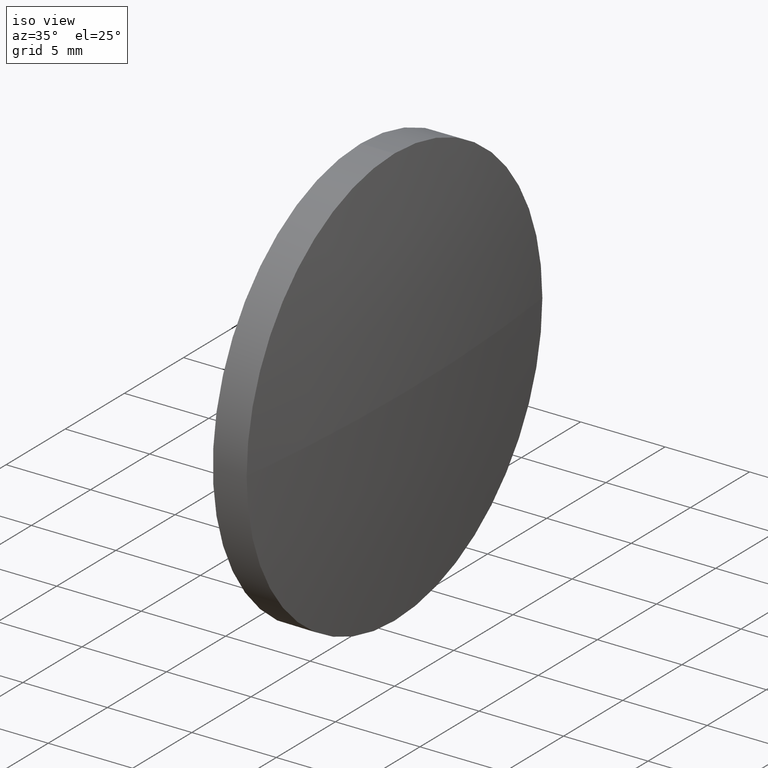
[diagram: clean part render]
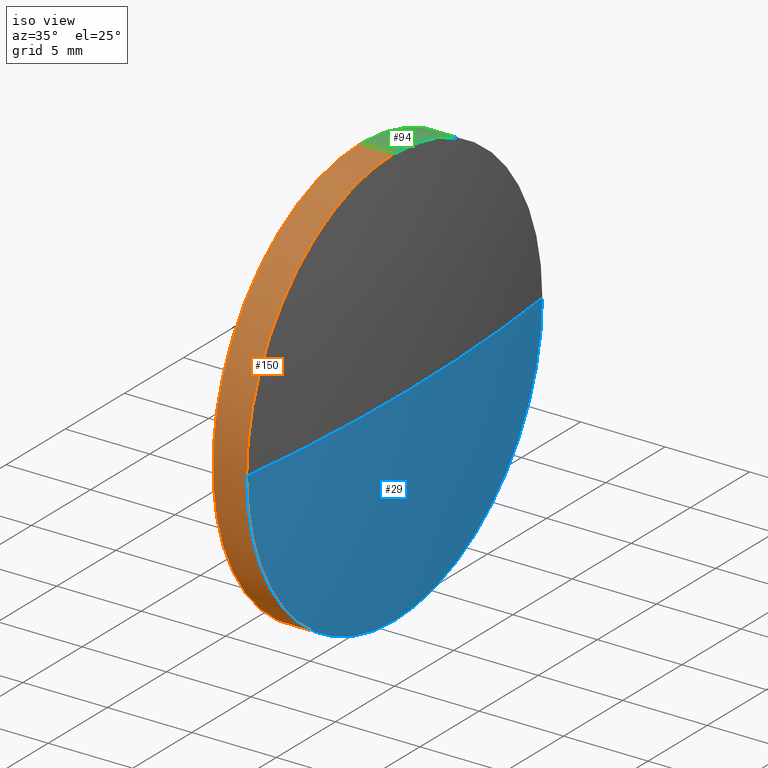
[diagram: same view with three faces highlighted in distinct colors, each labeled with its STEP entity id]
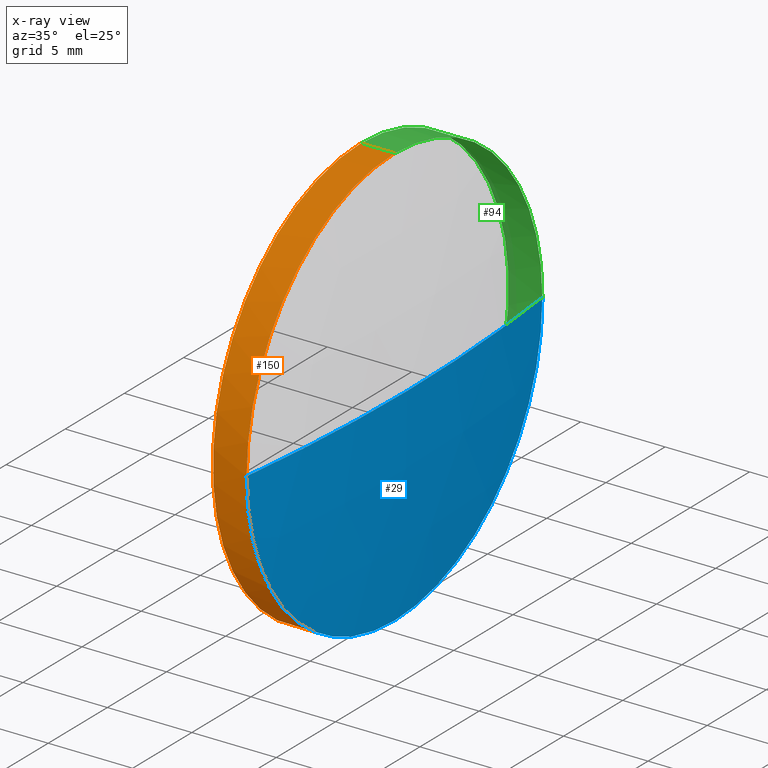
[diagram: x-ray of the same camera — body ghosted, the three highlighted faces saturated]
A machine part, iso view with three faces highlighted in distinct colors.
The next image is the same camera in x-ray (body ghosted, the three faces saturated) — at least one of them is partly hidden behind the body in this view.
Their STEP definitions:

[orange] entity #150 — the highlighted cylindrical surface (partial cylindrical patch) has radius 12.5 mm, axis along (-1, -0, -0).
#1 = CIRCLE ( 'NONE', #144, 12.49999999999999600 ) ;
#10 = EDGE_CURVE ( 'NONE', #66, #52, #1, .T. ) ;
#11 = VERTEX_POINT ( 'NONE', #124 ) ;
#12 = AXIS2_PLACEMENT_3D ( 'NONE', #163, #36, #161 ) ;
#31 = CARTESIAN_POINT ( 'NONE',  ( 407.3228291971680600, 90.20022924379941300, -12.49999999999999600 ) ) ;
#33 = DIRECTION ( 'NONE',  ( 0.0000000000000000000, 0.0000000000000000000, 1.000000000000000000 ) ) ;
#36 = DIRECTION ( 'NONE',  ( -1.000000000000000000, -0.0000000000000000000, -0.0000000000000000000 ) ) ;
#37 = DIRECTION ( 'NONE',  ( 0.0000000000000000000, 0.0000000000000000000, 1.000000000000000000 ) ) ;
#39 = LINE ( 'NONE', #31, #115 ) ;
#49 = CARTESIAN_POINT ( 'NONE',  ( 409.3519367756050500, 90.20022924379941300, 0.0000000000000000000 ) ) ;
#52 = VERTEX_POINT ( 'NONE', #110 ) ;
#59 = DIRECTION ( 'NONE',  ( -1.000000000000000000, -0.0000000000000000000, -0.0000000000000000000 ) ) ;
#63 = ORIENTED_EDGE ( 'NONE', *, *, #138, .F. ) ;
#66 = VERTEX_POINT ( 'NONE', #154 ) ;
#67 = EDGE_CURVE ( 'NONE', #166, #11, #39, .T. ) ;
#72 = CARTESIAN_POINT ( 'NONE',  ( 411.3519367756050500, 90.20022924379941300, 0.0000000000000000000 ) ) ;
#74 = CARTESIAN_POINT ( 'NONE',  ( 407.3228291971680600, 90.20022924379941300, 12.49999999999999600 ) ) ;
#84 = CARTESIAN_POINT ( 'NONE',  ( 411.3519367756050500, 90.20022924379941300, 0.0000000000000000000 ) ) ;
#89 = EDGE_CURVE ( 'NONE', #166, #66, #109, .T. ) ;
#91 = CARTESIAN_POINT ( 'NONE',  ( 409.3519367756050500, 90.20022924379941300, 12.49999999999999600 ) ) ;
#93 = ORIENTED_EDGE ( 'NONE', *, *, #10, .T. ) ;
#97 = AXIS2_PLACEMENT_3D ( 'NONE', #84, #114, #37 ) ;
#99 = DIRECTION ( 'NONE',  ( -1.000000000000000000, -0.0000000000000000000, -0.0000000000000000000 ) ) ;
#100 = ORIENTED_EDGE ( 'NONE', *, *, #67, .F. ) ;
#102 = CARTESIAN_POINT ( 'NONE',  ( 411.3519367756050500, 90.20022924379941300, -12.49999999999999600 ) ) ;
#109 = CIRCLE ( 'NONE', #97, 12.49999999999999600 ) ;
#110 = CARTESIAN_POINT ( 'NONE',  ( 411.3519367756050500, 90.20022924379941300, 12.49999999999999600 ) ) ;
#114 = DIRECTION ( 'NONE',  ( -1.000000000000000000, -0.0000000000000000000, -0.0000000000000000000 ) ) ;
#115 = VECTOR ( 'NONE', #122, 1000.000000000000000 ) ;
#119 = EDGE_LOOP ( 'NONE', ( #100, #151, #93, #147, #63 ) ) ;
#120 = CIRCLE ( 'NONE', #141, 12.49999999999999600 ) ;
#122 = DIRECTION ( 'NONE',  ( -1.000000000000000000, -0.0000000000000000000, -0.0000000000000000000 ) ) ;
#124 = CARTESIAN_POINT ( 'NONE',  ( 409.3519367756050500, 90.20022924379941300, -12.49999999999999600 ) ) ;
#130 = CYLINDRICAL_SURFACE ( 'NONE', #12, 12.49999999999999600 ) ;
#131 = DIRECTION ( 'NONE',  ( -1.000000000000000000, -0.0000000000000000000, -0.0000000000000000000 ) ) ;
#134 = LINE ( 'NONE', #74, #148 ) ;
#138 = EDGE_CURVE ( 'NONE', #11, #176, #120, .T. ) ;
#141 = AXIS2_PLACEMENT_3D ( 'NONE', #49, #131, #177 ) ;
#144 = AXIS2_PLACEMENT_3D ( 'NONE', #72, #99, #33 ) ;
#147 = ORIENTED_EDGE ( 'NONE', *, *, #181, .T. ) ;
#148 = VECTOR ( 'NONE', #59, 1000.000000000000000 ) ;
#150 = ADVANCED_FACE ( 'NONE', ( #167 ), #130, .T. ) ;
#151 = ORIENTED_EDGE ( 'NONE', *, *, #89, .T. ) ;
#154 = CARTESIAN_POINT ( 'NONE',  ( 411.3519367756050500, 77.70022924379932800, -1.530808498934180100E-015 ) ) ;
#161 = DIRECTION ( 'NONE',  ( 0.0000000000000000000, 0.0000000000000000000, 1.000000000000000000 ) ) ;
#163 = CARTESIAN_POINT ( 'NONE',  ( 407.3228291971680600, 90.20022924379941300, 0.0000000000000000000 ) ) ;
#166 = VERTEX_POINT ( 'NONE', #102 ) ;
#167 = FACE_OUTER_BOUND ( 'NONE', #119, .T. ) ;
#176 = VERTEX_POINT ( 'NONE', #91 ) ;
#177 = DIRECTION ( 'NONE',  ( 0.0000000000000000000, 0.0000000000000000000, 1.000000000000000000 ) ) ;
#181 = EDGE_CURVE ( 'NONE', #52, #176, #134, .T. ) ;

[blue] entity #29 — the highlighted spherical surface has radius 103.176 mm.
#8 = ORIENTED_EDGE ( 'NONE', *, *, #57, .T. ) ;
#15 = DIRECTION ( 'NONE',  ( -0.0000000000000000000, 0.0000000000000000000, -1.000000000000000000 ) ) ;
#16 = CARTESIAN_POINT ( 'NONE',  ( 411.3519367756050500, 102.7002292437993300, 0.0000000000000000000 ) ) ;
#17 = CARTESIAN_POINT ( 'NONE',  ( 412.1119367756050500, 90.20022924379924200, 0.0000000000000000000 ) ) ;
#19 = CIRCLE ( 'NONE', #107, 12.49999999999999600 ) ;
#25 = VERTEX_POINT ( 'NONE', #16 ) ;
#29 = ADVANCED_FACE ( 'NONE', ( #153 ), #98, .T. ) ;
#30 = ORIENTED_EDGE ( 'NONE', *, *, #43, .F. ) ;
#37 = DIRECTION ( 'NONE',  ( 0.0000000000000000000, 0.0000000000000000000, 1.000000000000000000 ) ) ;
#41 = CIRCLE ( 'NONE', #116, 103.1760526315793200 ) ;
#42 = DIRECTION ( 'NONE',  ( 0.0000000000000000000, 1.000000000000000000, 1.224646799147353200E-016 ) ) ;
#43 = EDGE_CURVE ( 'NONE', #128, #25, #149, .T. ) ;
#45 = DIRECTION ( 'NONE',  ( 1.000000000000000000, 0.0000000000000000000, 0.0000000000000000000 ) ) ;
#57 = EDGE_CURVE ( 'NONE', #128, #66, #41, .T. ) ;
#62 = DIRECTION ( 'NONE',  ( -1.000000000000000000, -0.0000000000000000000, -0.0000000000000000000 ) ) ;
#66 = VERTEX_POINT ( 'NONE', #154 ) ;
#69 = DIRECTION ( 'NONE',  ( -0.0000000000000000000, 0.0000000000000000000, 1.000000000000000000 ) ) ;
#70 = AXIS2_PLACEMENT_3D ( 'NONE', #186, #15, #157 ) ;
#83 = AXIS2_PLACEMENT_3D ( 'NONE', #126, #69, #45 ) ;
#84 = CARTESIAN_POINT ( 'NONE',  ( 411.3519367756050500, 90.20022924379941300, 0.0000000000000000000 ) ) ;
#89 = EDGE_CURVE ( 'NONE', #166, #66, #109, .T. ) ;
#95 = EDGE_CURVE ( 'NONE', #25, #166, #19, .T. ) ;
#97 = AXIS2_PLACEMENT_3D ( 'NONE', #84, #114, #37 ) ;
#98 = SPHERICAL_SURFACE ( 'NONE', #70, 103.1760526315793200 ) ;
#102 = CARTESIAN_POINT ( 'NONE',  ( 411.3519367756050500, 90.20022924379941300, -12.49999999999999600 ) ) ;
#106 = ORIENTED_EDGE ( 'NONE', *, *, #89, .F. ) ;
#107 = AXIS2_PLACEMENT_3D ( 'NONE', #178, #62, #113 ) ;
#109 = CIRCLE ( 'NONE', #97, 12.49999999999999600 ) ;
#111 = DIRECTION ( 'NONE',  ( 0.0000000000000000000, 1.224646799147353200E-016, -1.000000000000000000 ) ) ;
#113 = DIRECTION ( 'NONE',  ( 0.0000000000000000000, 0.0000000000000000000, 1.000000000000000000 ) ) ;
#114 = DIRECTION ( 'NONE',  ( -1.000000000000000000, -0.0000000000000000000, -0.0000000000000000000 ) ) ;
#116 = AXIS2_PLACEMENT_3D ( 'NONE', #140, #111, #42 ) ;
#126 = CARTESIAN_POINT ( 'NONE',  ( 308.9358841440257500, 90.20022924379924200, 0.0000000000000000000 ) ) ;
#128 = VERTEX_POINT ( 'NONE', #17 ) ;
#140 = CARTESIAN_POINT ( 'NONE',  ( 308.9358841440257500, 90.20022924379924200, 0.0000000000000000000 ) ) ;
#142 = ORIENTED_EDGE ( 'NONE', *, *, #95, .F. ) ;
#149 = CIRCLE ( 'NONE', #83, 103.1760526315793100 ) ;
#153 = FACE_OUTER_BOUND ( 'NONE', #183, .T. ) ;
#154 = CARTESIAN_POINT ( 'NONE',  ( 411.3519367756050500, 77.70022924379932800, -1.530808498934180100E-015 ) ) ;
#157 = DIRECTION ( 'NONE',  ( 0.0000000000000000000, 1.000000000000000000, 0.0000000000000000000 ) ) ;
#166 = VERTEX_POINT ( 'NONE', #102 ) ;
#178 = CARTESIAN_POINT ( 'NONE',  ( 411.3519367756050500, 90.20022924379941300, 0.0000000000000000000 ) ) ;
#183 = EDGE_LOOP ( 'NONE', ( #30, #8, #106, #142 ) ) ;
#186 = CARTESIAN_POINT ( 'NONE',  ( 308.9358841440257500, 90.20022924379924200, 0.0000000000000000000 ) ) ;

[green] entity #94 — the highlighted cylindrical surface (partial cylindrical patch) has radius 12.5 mm, axis along (-1, -0, -0).
#6 = FACE_OUTER_BOUND ( 'NONE', #71, .T. ) ;
#11 = VERTEX_POINT ( 'NONE', #124 ) ;
#13 = DIRECTION ( 'NONE',  ( -1.000000000000000000, -0.0000000000000000000, -0.0000000000000000000 ) ) ;
#16 = CARTESIAN_POINT ( 'NONE',  ( 411.3519367756050500, 102.7002292437993300, 0.0000000000000000000 ) ) ;
#19 = CIRCLE ( 'NONE', #107, 12.49999999999999600 ) ;
#25 = VERTEX_POINT ( 'NONE', #16 ) ;
#27 = EDGE_CURVE ( 'NONE', #52, #25, #136, .T. ) ;
#31 = CARTESIAN_POINT ( 'NONE',  ( 407.3228291971680600, 90.20022924379941300, -12.49999999999999600 ) ) ;
#32 = DIRECTION ( 'NONE',  ( 0.0000000000000000000, 0.0000000000000000000, 1.000000000000000000 ) ) ;
#39 = LINE ( 'NONE', #31, #115 ) ;
#44 = ORIENTED_EDGE ( 'NONE', *, *, #27, .T. ) ;
#47 = CARTESIAN_POINT ( 'NONE',  ( 407.3228291971680600, 90.20022924379941300, 0.0000000000000000000 ) ) ;
#50 = DIRECTION ( 'NONE',  ( -1.000000000000000000, -0.0000000000000000000, -0.0000000000000000000 ) ) ;
#51 = ORIENTED_EDGE ( 'NONE', *, *, #67, .T. ) ;
#52 = VERTEX_POINT ( 'NONE', #110 ) ;
#58 = CARTESIAN_POINT ( 'NONE',  ( 411.3519367756050500, 90.20022924379941300, 0.0000000000000000000 ) ) ;
#59 = DIRECTION ( 'NONE',  ( -1.000000000000000000, -0.0000000000000000000, -0.0000000000000000000 ) ) ;
#62 = DIRECTION ( 'NONE',  ( -1.000000000000000000, -0.0000000000000000000, -0.0000000000000000000 ) ) ;
#67 = EDGE_CURVE ( 'NONE', #166, #11, #39, .T. ) ;
#68 = DIRECTION ( 'NONE',  ( -1.000000000000000000, -0.0000000000000000000, -0.0000000000000000000 ) ) ;
#71 = EDGE_LOOP ( 'NONE', ( #165, #51, #82, #86, #44 ) ) ;
#74 = CARTESIAN_POINT ( 'NONE',  ( 407.3228291971680600, 90.20022924379941300, 12.49999999999999600 ) ) ;
#77 = EDGE_CURVE ( 'NONE', #176, #11, #79, .T. ) ;
#79 = CIRCLE ( 'NONE', #104, 12.49999999999999600 ) ;
#80 = AXIS2_PLACEMENT_3D ( 'NONE', #47, #50, #145 ) ;
#81 = AXIS2_PLACEMENT_3D ( 'NONE', #58, #68, #173 ) ;
#82 = ORIENTED_EDGE ( 'NONE', *, *, #77, .F. ) ;
#86 = ORIENTED_EDGE ( 'NONE', *, *, #181, .F. ) ;
#88 = CYLINDRICAL_SURFACE ( 'NONE', #80, 12.49999999999999600 ) ;
#91 = CARTESIAN_POINT ( 'NONE',  ( 409.3519367756050500, 90.20022924379941300, 12.49999999999999600 ) ) ;
#94 = ADVANCED_FACE ( 'NONE', ( #6 ), #88, .T. ) ;
#95 = EDGE_CURVE ( 'NONE', #25, #166, #19, .T. ) ;
#102 = CARTESIAN_POINT ( 'NONE',  ( 411.3519367756050500, 90.20022924379941300, -12.49999999999999600 ) ) ;
#104 = AXIS2_PLACEMENT_3D ( 'NONE', #171, #13, #32 ) ;
#107 = AXIS2_PLACEMENT_3D ( 'NONE', #178, #62, #113 ) ;
#110 = CARTESIAN_POINT ( 'NONE',  ( 411.3519367756050500, 90.20022924379941300, 12.49999999999999600 ) ) ;
#113 = DIRECTION ( 'NONE',  ( 0.0000000000000000000, 0.0000000000000000000, 1.000000000000000000 ) ) ;
#115 = VECTOR ( 'NONE', #122, 1000.000000000000000 ) ;
#122 = DIRECTION ( 'NONE',  ( -1.000000000000000000, -0.0000000000000000000, -0.0000000000000000000 ) ) ;
#124 = CARTESIAN_POINT ( 'NONE',  ( 409.3519367756050500, 90.20022924379941300, -12.49999999999999600 ) ) ;
#134 = LINE ( 'NONE', #74, #148 ) ;
#136 = CIRCLE ( 'NONE', #81, 12.49999999999999600 ) ;
#145 = DIRECTION ( 'NONE',  ( 0.0000000000000000000, 0.0000000000000000000, 1.000000000000000000 ) ) ;
#148 = VECTOR ( 'NONE', #59, 1000.000000000000000 ) ;
#165 = ORIENTED_EDGE ( 'NONE', *, *, #95, .T. ) ;
#166 = VERTEX_POINT ( 'NONE', #102 ) ;
#171 = CARTESIAN_POINT ( 'NONE',  ( 409.3519367756050500, 90.20022924379941300, 0.0000000000000000000 ) ) ;
#173 = DIRECTION ( 'NONE',  ( 0.0000000000000000000, 0.0000000000000000000, 1.000000000000000000 ) ) ;
#176 = VERTEX_POINT ( 'NONE', #91 ) ;
#178 = CARTESIAN_POINT ( 'NONE',  ( 411.3519367756050500, 90.20022924379941300, 0.0000000000000000000 ) ) ;
#181 = EDGE_CURVE ( 'NONE', #52, #176, #134, .T. ) ;